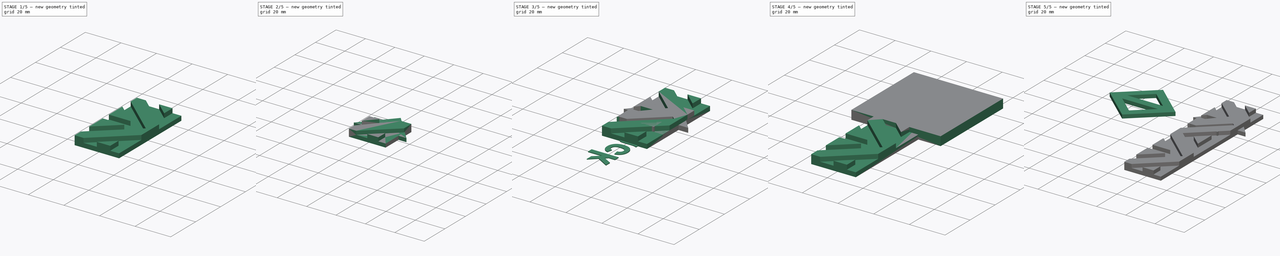
[diagram: build sequence overview — one tinted view per stage of 5, left to right]
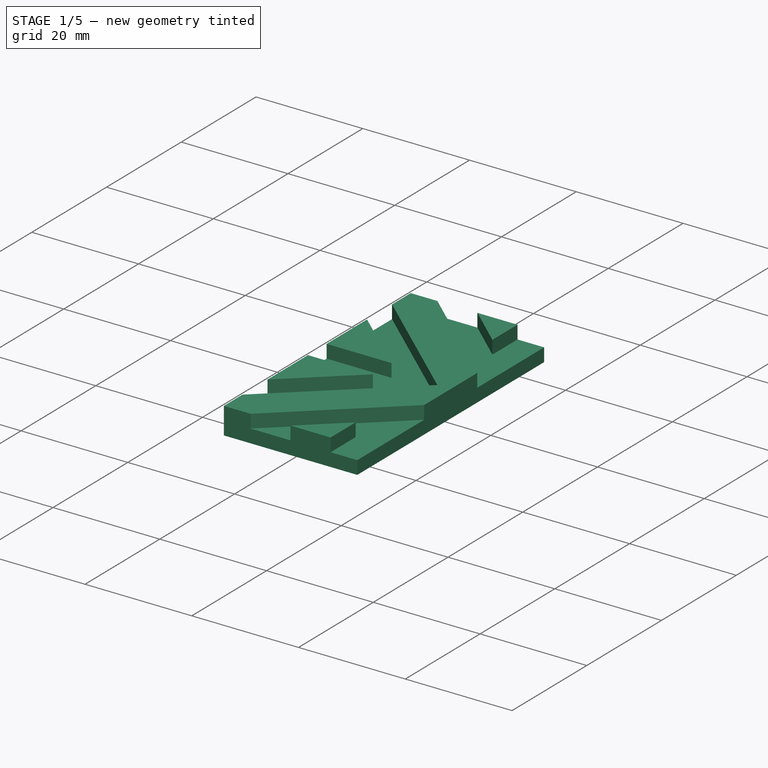
[diagram: stage 1 of 5 — iso view after this stage's code; geometry added in this stage tinted green]
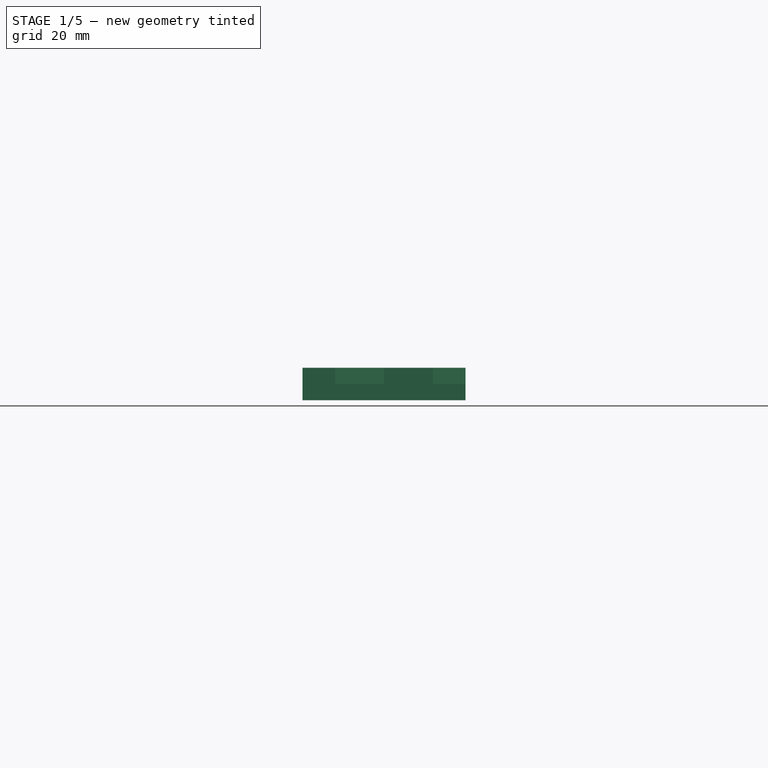
[diagram: stage 1 of 5 — front view after this stage's code; geometry added in this stage tinted green]
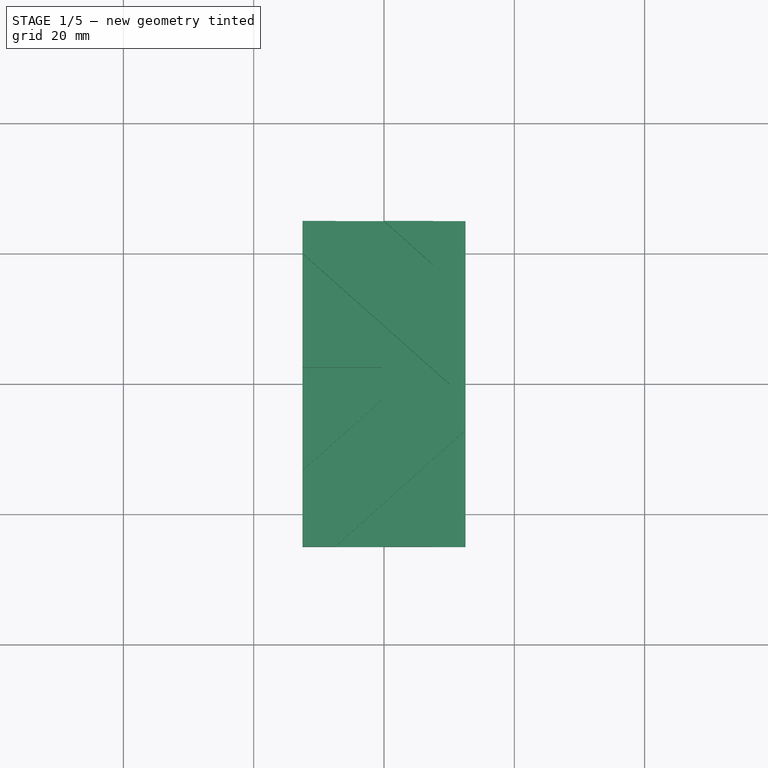
[diagram: stage 1 of 5 — top view after this stage's code; geometry added in this stage tinted green]
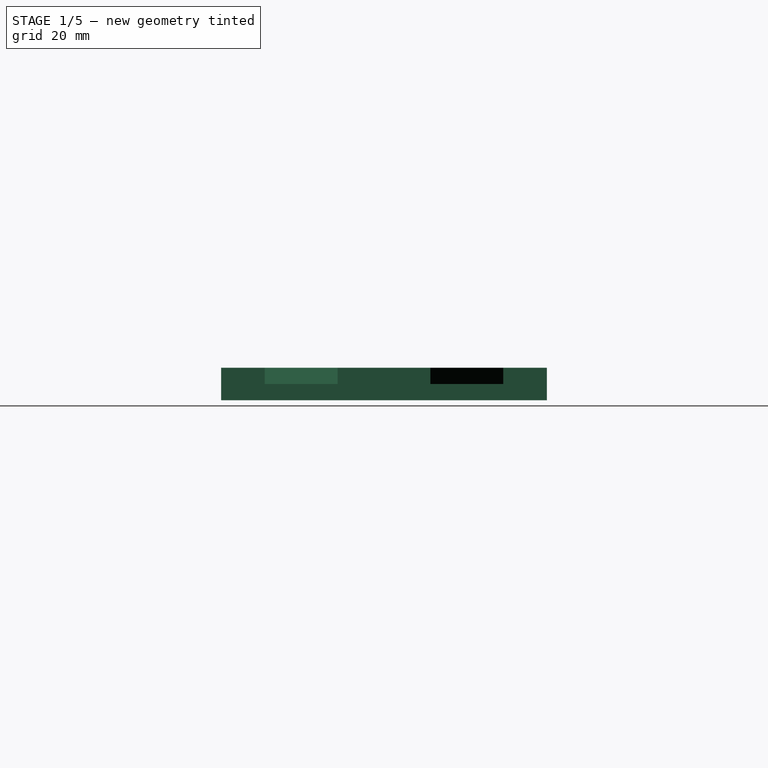
[diagram: stage 1 of 5 — right view after this stage's code; geometry added in this stage tinted green]
FCSTD DOCUMENT  (FreeCAD 1.0R39319 (Git))
Label: ChessBoard
License: All rights reserved
LicenseURL: https://en.wikipedia.org/wiki/All_rights_reserved
objects: Sketcher::SketchObject×9, PartDesign::Pad×6, PartDesign::Body×6, PartDesign::Pocket×4, Part::Extrusion×4, PartDesign::SubShapeBinder×3, PartDesign::Mirrored×3, Part::Part2DObjectPython×2, Part::Cut×2, App::VarSet×1, PartDesign::PolarPattern×1
note: 73 computed .brp shape members not serialized (recipe doc carries the construction recipe); baked Part::Feature solids carry a one-line shape summary decoded from their .brp

FEATURE [PartDesign::Body] Body001  label="Connector"
  AllowCompound = false
  Group = -> [Sketch002,Binder,Pad001,Mirrored]
  Origin = -> Origin001
  Tip = -> Mirrored
FEATURE [Sketcher::SketchObject] Sketch003
  ArcFitTolerance = 1e-06
  AttachmentSupport = -> [XY_Plane002]
  FullyConstrained = true
  MakeInternals = false
  MapMode = 5
  expr: Constraints[10] = VarSet.BorderSize
  expr: Constraints[9] = VarSet.BlockSize
  sketch-geometry (5):
    g0: LineSegment StartX=-12.5 StartY=25 StartZ=0 EndX=-12.5 EndY=-25 EndZ=0
    g1: LineSegment StartX=-12.5 StartY=-25 StartZ=0 EndX=12.5 EndY=-25 EndZ=0
    g2: LineSegment StartX=12.5 StartY=-25 StartZ=0 EndX=12.5 EndY=25 EndZ=0
    g3: LineSegment StartX=12.5 StartY=25 StartZ=0 EndX=-12.5 EndY=25 EndZ=0
    g4: GeomPoint [constr] X=0 Y=0 Z=0
  constraints (12):
    c: Coincident(g0,g1)
    c: Coincident(g1,g2)
    c: Coincident(g2,g3)
    c: Coincident(g3,g0)
    c: Vertical(g0)
    c: Vertical(g2)
    c: Horizontal(g1)
    c: Horizontal(g3)
    c: Symmetric(g2,g0,g4)
    c: DistanceY(g2,g2) = 50
    c: DistanceX(g1,g1) = 25
    c: Coincident(g4,g-1)
FEATURE [PartDesign::Pad] Pad002
  Direction = (0,0,1)
  Length = 5
  Length2 = 10
  Profile = -> Sketch003
  ReferenceAxis = -> Sketch003 [N_Axis]
  Refine = true
  Suppressed = false
  Type = 0
  expr: Length = VarSet.Thickness
FEATURE [Sketcher::SketchObject] Sketch004
  ArcFitTolerance = 1e-06
  AttachmentSupport = -> [Pad002]
  ExternalGeometry = -> [Pad002]
  FullyConstrained = true
  MakeInternals = false
  MapMode = 5
  Placement = pos=(0,0,5) rot=(0,0,1;0rad)
  expr: Constraints[41] = VarSet.ConnectorGap
  expr: Constraints[42] = VarSet.ConnectorGap
  expr: Constraints[45] = VarSet.ConnectorJoinThickness
  expr: Constraints[46] = VarSet.ConnectorJoinThickness
  expr: Constraints[47] = VarSet.ConnectorJoinThickness
  expr: Constraints[48] = VarSet.ConnectorGap / 2
  expr: Constraints[55] = VarSet.ConnectorGap
  expr: Constraints[56] = VarSet.ConnectorJoinThickness
  expr: Constraints[57] = VarSet.ConnectorJoinThickness
  expr: Constraints[59] = VarSet.ConnectorJoinThickness
  sketch-geometry (21):
    g0: LineSegment StartX=-12.5 StartY=20 StartZ=0 EndX=10 EndY=0 EndZ=0
    g1: LineSegment StartX=10 StartY=0 StartZ=0 EndX=-12.5 EndY=-20 EndZ=0
    g2: LineSegment StartX=-12.5 StartY=-20 StartZ=0 EndX=-12.5 EndY=-13.3102 EndZ=0
    g3: LineSegment StartX=-12.5 StartY=-13.3102 StartZ=0 EndX=-0.338497 EndY=-2.5 EndZ=0
    g4: LineSegment StartX=-0.338497 StartY=-2.5 StartZ=0 EndX=-12.5 EndY=-2.5 EndZ=0
    g5: LineSegment StartX=-12.5 StartY=-2.5 StartZ=0 EndX=-12.5 EndY=2.5 EndZ=0
    g6: LineSegment StartX=-12.5 StartY=2.5 StartZ=0 EndX=-0.338497 EndY=2.5 EndZ=0
    g7: LineSegment StartX=-0.338497 StartY=2.5 StartZ=0 EndX=-12.5 EndY=13.3102 EndZ=0
    g8: LineSegment StartX=-12.5 StartY=13.3102 StartZ=0 EndX=-12.5 EndY=20 EndZ=0
    g9: LineSegment StartX=-7.5 StartY=25 StartZ=0 EndX=12.5 EndY=7.11146 EndZ=0
    g10: LineSegment StartX=12.5 StartY=7.11146 StartZ=0 EndX=12.5 EndY=25 EndZ=0
    g11: LineSegment StartX=12.5 StartY=25 StartZ=0 EndX=7.5 EndY=25 EndZ=0
    g12: LineSegment StartX=7.5 StartY=25 StartZ=0 EndX=7.5 EndY=18.2918 EndZ=0
    g13: LineSegment StartX=7.5 StartY=18.2918 StartZ=0 EndX=-9e-16 EndY=25 EndZ=0
    g14: LineSegment StartX=-9e-16 StartY=25 StartZ=0 EndX=-7.5 EndY=25 EndZ=0
    g15: LineSegment StartX=-7.5 StartY=-25 StartZ=0 EndX=12.5 EndY=-7.11146 EndZ=0
    g16: LineSegment StartX=12.5 StartY=-7.11146 StartZ=0 EndX=12.5 EndY=-25 EndZ=0
    g17: LineSegment StartX=12.5 StartY=-25 StartZ=0 EndX=7.5 EndY=-25 EndZ=0
    g18: LineSegment StartX=7.5 StartY=-25 StartZ=0 EndX=7.5 EndY=-18.2918 EndZ=0
    g19: LineSegment StartX=7.5 StartY=-18.2918 StartZ=0 EndX=1.8e-15 EndY=-25 EndZ=0
    g20: LineSegment StartX=1.8e-15 StartY=-25 StartZ=0 EndX=-7.5 EndY=-25 EndZ=0
  constraints (60):
    c: PointOnObject(g0,g-3)
    c: PointOnObject(g0,g-1)
    c: Coincident(g0,g1)
    c: PointOnObject(g1,g-3)
    c: Coincident(g1,g2)
    c: PointOnObject(g2,g-3)
    c: Coincident(g2,g3)
    c: Coincident(g3,g4)
    c: PointOnObject(g4,g-3)
    c: Horizontal(g4)
    c: Coincident(g4,g5)
    c: PointOnObject(g5,g-3)
    c: Coincident(g5,g6)
    c: Horizontal(g6)
    c: Coincident(g6,g7)
    c: PointOnObject(g7,g-3)
    c: Coincident(g7,g8)
    c: Coincident(g8,g0)
    c: PointOnObject(g9,g-5)
    c: PointOnObject(g9,g-4)
    c: Coincident(g9,g10)
    c: Coincident(g10,g-5)
    c: Coincident(g10,g11)
    c: PointOnObject(g11,g-5)
    c: Coincident(g11,g12)
    c: Vertical(g12)
    c: Coincident(g12,g13)
    c: Coincident(g13,g14)
    c: Coincident(g14,g9)
    c: PointOnObject(g15,g-6)
    c: PointOnObject(g15,g-4)
    c: Coincident(g15,g16)
    c: Coincident(g16,g-6)
    c: Coincident(g16,g17)
    c: PointOnObject(g17,g-6)
    c: Coincident(g17,g18)
    c: Vertical(g18)
    c: Coincident(g18,g19)
    c: Symmetric(g-6,g-6,g19)
    c: Coincident(g19,g20)
    c: Coincident(g20,g15)
    c: DistanceY(g0,g-5) = 5
    c: DistanceY(g-6,g1) = 5
    c: Equal(g6,g4)
    c: Equal(g3,g7)
    c: DistanceY(g5,g5) = 5
    c: Distance(g6,g0) = 5
    c: Distance(g7,g0) = 5
    c: Distance(g0,g-4) = 2.5
    c: Equal(g8,g2)
    c: Equal(g9,g15)
    c: Equal(g13,g19)
    c: Equal(g18,g12)
    c: Equal(g11,g17)
    c: Equal(g10,g16)
    c: DistanceX(g-5,g9) = 5
    c: Distance(g12,g9) = 5
    c: Distance(g13,g9) = 5
    c: PointOnObject(g13,g-5)
    c: Distance(g11,g11) = 5
FEATURE [PartDesign::Pocket] Pocket001
  BaseFeature = -> Pad002
  Direction = (0,0,-1)
  Length = 2.5
  Length2 = 5
  Profile = -> Sketch004
  ReferenceAxis = -> Sketch004 [N_Axis]
  Refine = true
  Suppressed = false
  Type = 0
  expr: Length = VarSet.ConnectorThickness
FEATURE [PartDesign::Body] Body002  label="Border"
  AllowCompound = false
  Group = -> [Sketch003,Pad002,Sketch004,Pocket001]
  Origin = -> Origin002
  Tip = -> Pocket001
FEATURE [Part::Part2DObjectPython] ShapeString  # Draft 2D object (typed FeaturePython)
  AttachmentOffset = pos=(5,7.5,0) rot=(0,0,1;3.14159rad)
  AttachmentSupport = -> [Pocket001]
  FontFile = <path>
  Fuse = false
  Justification = 6
  JustificationReference = 0
  KeepLeftMargin = false
  MakeFace = true
  MapMode = 5
  ObliqueAngle = 0
  Placement = pos=(5,-7.5,0) rot=(0,-1,0;3.14159rad)
  ScaleToSize = true
  Size = 15
  String = 8
  Tracking = 0
  expr: .AttachmentOffset.Base.x = VarSet.FontSize / 3
  expr: .AttachmentOffset.Base.y = VarSet.FontSize / 2
  expr: Size = VarSet.FontSize
FEATURE [Part::Extrusion] Extrude
  Base = -> ShapeString
  Dir = (0,0,-1)
  DirMode = 2
  FaceMakerClass = Part::FaceMakerBullseye
  FaceMakerMode = 3
  LengthFwd = 0
  LengthRev = 0.4
  Solid = false
  Symmetric = false
  expr: LengthRev = VarSet.InkThickness
FEATURE [Part::Cut] Cut  label="BorderBlock"
  Base = -> Body002
  Refine = true
  Tool = -> Extrude
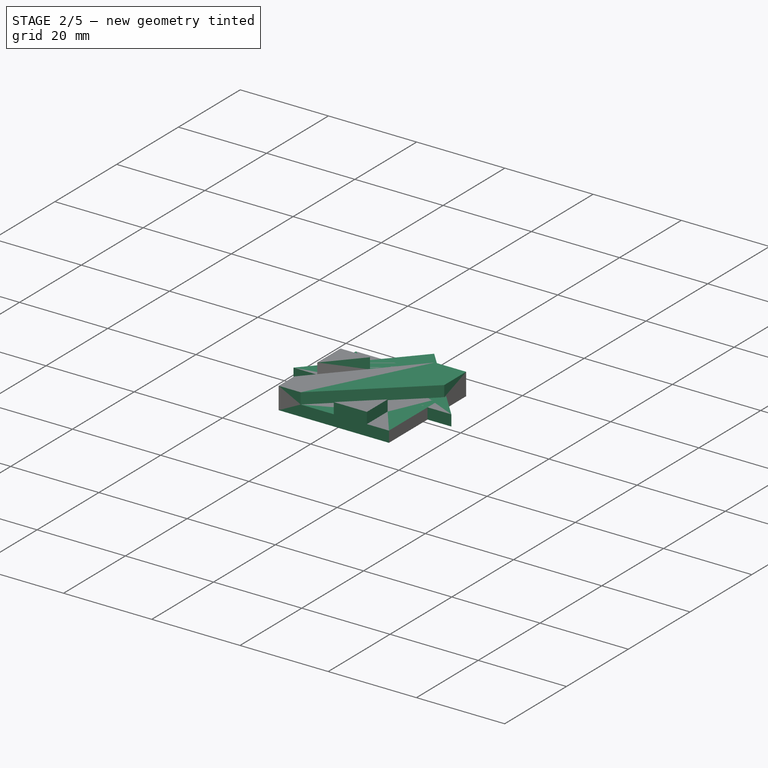
[diagram: stage 2 of 5 — iso view after this stage's code; geometry added in this stage tinted green]
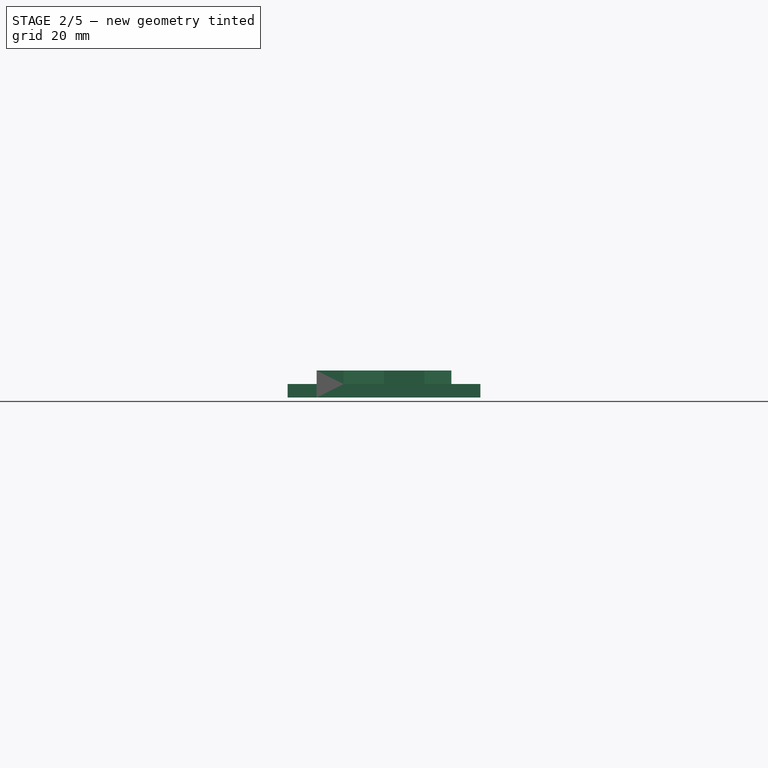
[diagram: stage 2 of 5 — front view after this stage's code; geometry added in this stage tinted green]
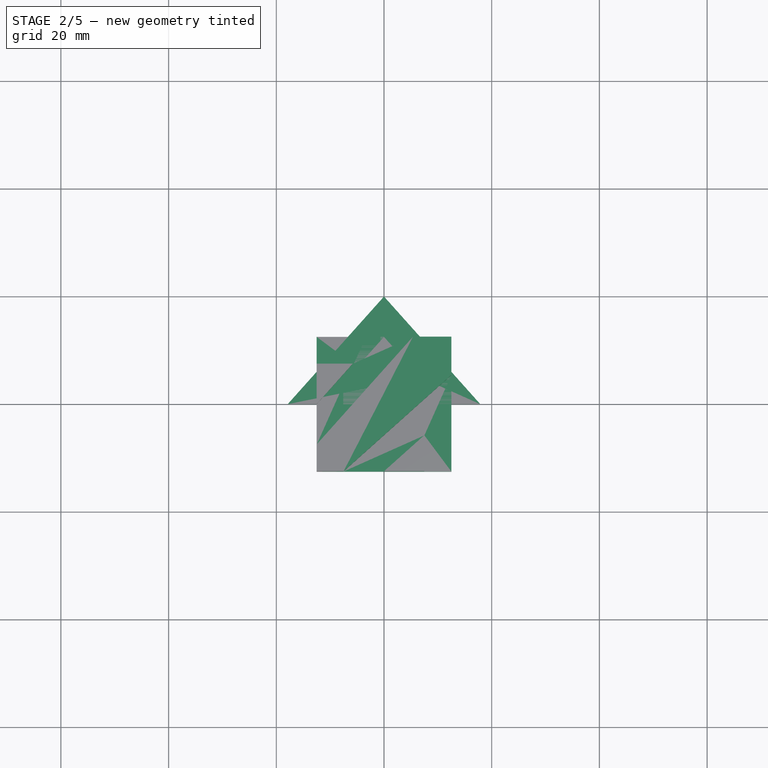
[diagram: stage 2 of 5 — top view after this stage's code; geometry added in this stage tinted green]
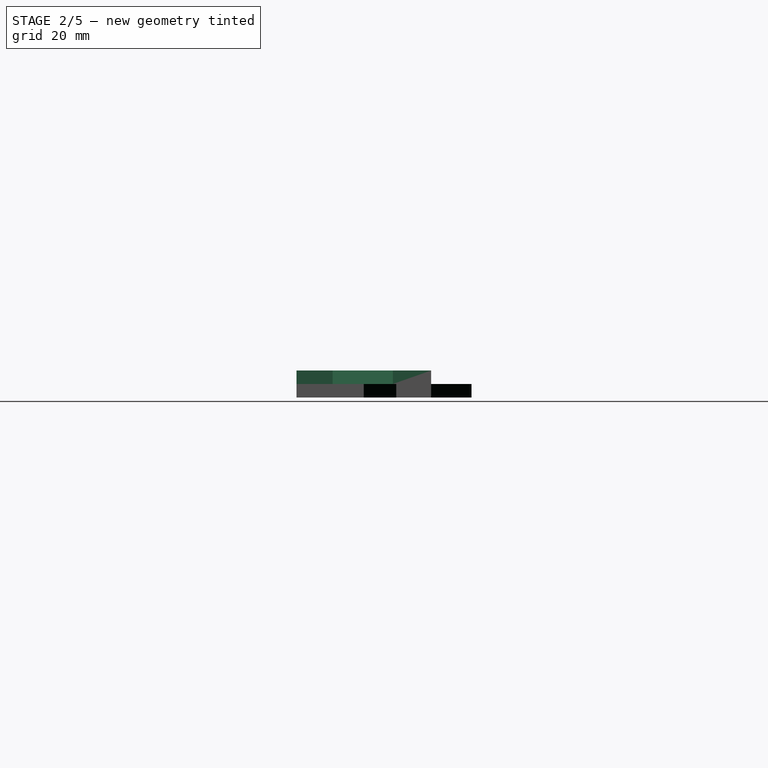
[diagram: stage 2 of 5 — right view after this stage's code; geometry added in this stage tinted green]
FEATURE [PartDesign::SubShapeBinder] Binder001
  BindCopyOnChange = 0
  BindMode = 0
  ClaimChildren = false
  Context = -> Body004 [Binder001.]
  Fuse = false
  MakeFace = true
  OffsetFill = false
  OffsetIntersection = false
  OffsetJoinType = 0
  OffsetOpenResult = false
  PartialLoad = false
  Placement = pos=(50,0,0) rot=(0,0,1;0rad)
  Refine = true
  Relative = true
  Support = -> [Body002[Sketch004.]]
  _Version = 2
  expr: .Placement.Base.x = VarSet.BlockSize
FEATURE [Sketcher::SketchObject] Sketch006
  ArcFitTolerance = 1e-06
  AttachmentSupport = -> [XY_Plane004]
  FullyConstrained = true
  MakeInternals = false
  MapMode = 5
  expr: Constraints[11] = VarSet.BorderSize
  sketch-geometry (5):
    g0: LineSegment StartX=-12.5 StartY=12.5 StartZ=0 EndX=-12.5 EndY=-12.5 EndZ=0
    g1: LineSegment StartX=-12.5 StartY=-12.5 StartZ=0 EndX=12.5 EndY=-12.5 EndZ=0
    g2: LineSegment StartX=12.5 StartY=-12.5 StartZ=0 EndX=12.5 EndY=12.5 EndZ=0
    g3: LineSegment StartX=12.5 StartY=12.5 StartZ=0 EndX=-12.5 EndY=12.5 EndZ=0
    g4: GeomPoint [constr] X=0 Y=0 Z=0
  constraints (12):
    c: Coincident(g0,g1)
    c: Coincident(g1,g2)
    c: Coincident(g2,g3)
    c: Coincident(g3,g0)
    c: Vertical(g0)
    c: Vertical(g2)
    c: Horizontal(g1)
    c: Horizontal(g3)
    c: Symmetric(g2,g0,g4)
    c: Coincident(g4,g-1)
    c: Equal(g2,g1)
    c: DistanceY(g0,g0) = 25
FEATURE [PartDesign::Pad] Pad004
  Direction = (0,0,1)
  Length = 5
  Length2 = 10
  Profile = -> Sketch006
  ReferenceAxis = -> Sketch006 [N_Axis]
  Refine = true
  Suppressed = false
  Type = 0
  expr: Length = VarSet.Thickness
FEATURE [Sketcher::SketchObject] Sketch007
  ArcFitTolerance = 1e-06
  AttachmentSupport = -> [Pad004]
  ExternalGeometry = -> [Pad004,Binder001]
  FullyConstrained = true
  MakeInternals = false
  MapMode = 5
  Placement = pos=(0,0,5) rot=(0,0,1;0rad)
  sketch-geometry (12):
    g0: LineSegment StartX=12.5 StartY=5.38854 StartZ=0 EndX=-7.5 EndY=-12.5 EndZ=0
    g1: LineSegment StartX=-7.5 StartY=-12.5 StartZ=0 EndX=9e-16 EndY=-12.5 EndZ=0
    g2: LineSegment StartX=9e-16 StartY=-12.5 StartZ=0 EndX=7.5 EndY=-5.7918 EndZ=0
    g3: LineSegment StartX=7.5 StartY=-5.7918 StartZ=0 EndX=7.5 EndY=-12.5 EndZ=0
    g4: LineSegment StartX=7.5 StartY=-12.5 StartZ=0 EndX=12.5 EndY=-12.5 EndZ=0
    g5: LineSegment StartX=12.5 StartY=-12.5 StartZ=0 EndX=12.5 EndY=5.38854 EndZ=0
    g6: LineSegment StartX=-12.5 StartY=-7.5 StartZ=0 EndX=5.38854 EndY=12.5 EndZ=0
    g7: LineSegment StartX=5.38854 StartY=12.5 StartZ=0 EndX=-12.5 EndY=12.5 EndZ=0
    g8: LineSegment StartX=-12.5 StartY=12.5 StartZ=0 EndX=-12.5 EndY=7.5 EndZ=0
    g9: LineSegment StartX=-12.5 StartY=7.5 StartZ=0 EndX=-5.7918 EndY=7.5 EndZ=0
    g10: LineSegment StartX=-5.7918 StartY=7.5 StartZ=0 EndX=-12.5 EndY=-1.6618e-12 EndZ=0
    g11: LineSegment StartX=-12.5 StartY=-1.6622e-12 StartZ=0 EndX=-12.5 EndY=-7.5 EndZ=0
  constraints (33):
    c: PointOnObject(g0,g-3)
    c: PointOnObject(g0,g-4)
    c: Coincident(g0,g1)
    c: Symmetric(g-4,g-4,g1)
    c: Coincident(g1,g2)
    c: Coincident(g2,g3)
    c: PointOnObject(g3,g-4)
    c: Vertical(g3)
    c: Coincident(g3,g4)
    c: Coincident(g4,g-4)
    c: Coincident(g4,g5)
    c: Coincident(g0,g5)
    c: Equal(g0,g-8)
    c: Equal(g2,g-10)
    c: Equal(g1,g-9)
    c: Equal(g4,g-12)
    c: PointOnObject(g6,g-5)
    c: PointOnObject(g6,g-6)
    c: Coincident(g6,g7)
    c: Coincident(g7,g-6)
    c: Coincident(g7,g8)
    c: PointOnObject(g8,g-5)
    c: Coincident(g8,g9)
    c: Horizontal(g9)
    c: Coincident(g9,g10)
    c: PointOnObject(g10,g-5)
    c: Coincident(g10,g11)
    c: Coincident(g11,g6)
    c: Equal(g0,g6)
    c: Equal(g8,g4)
    c: Equal(g11,g1)
    c: Equal(g10,g2)
    c: Equal(g9,g3)
FEATURE [PartDesign::Pocket] Pocket003
  BaseFeature = -> Pad004
  Direction = (0,0,-1)
  Length = 2.5
  Length2 = 5
  Profile = -> Sketch007
  ReferenceAxis = -> Sketch007 [N_Axis]
  Refine = true
  Suppressed = false
  Type = 0
  expr: Length = VarSet.ConnectorThickness
FEATURE [PartDesign::Body] Body004  label="Corner"
  AllowCompound = false
  Group = -> [Binder001,Sketch006,Pad004,Sketch007,Pocket003]
  Origin = -> Origin004
  Tip = -> Pocket003
FEATURE [PartDesign::SubShapeBinder] Binder002
  BindCopyOnChange = 0
  BindMode = 0
  ClaimChildren = false
  Context = -> Body005 [Binder002.]
  Fuse = false
  MakeFace = true
  OffsetFill = false
  OffsetIntersection = false
  OffsetJoinType = 0
  OffsetOpenResult = false
  PartialLoad = false
  Placement = pos=(50,0,0) rot=(0,0,1;0rad)
  Refine = true
  Relative = true
  Support = -> [Cut]
  _Version = 2
  expr: .Placement.Base.x = VarSet.BlockSize
FEATURE [Sketcher::SketchObject] Sketch008
  ArcFitTolerance = 1e-06
  AttachmentSupport = -> [XY_Plane005]
  ExternalGeometry = -> [Binder002]
  FullyConstrained = true
  MakeInternals = false
  MapMode = 5
  sketch-geometry (6):
    g0: LineSegment StartX=0 StartY=0 StartZ=0 EndX=-17.8885 EndY=0 EndZ=0
    g1: LineSegment StartX=-17.8885 StartY=0 StartZ=0 EndX=0 EndY=20 EndZ=0
    g2: LineSegment StartX=0 StartY=20 StartZ=0 EndX=0 EndY=12.5 EndZ=0
    g3: LineSegment StartX=0 StartY=12.5 StartZ=0 EndX=-6.7082 EndY=5 EndZ=0
    g4: LineSegment StartX=-6.7082 StartY=5 StartZ=0 EndX=0 EndY=5 EndZ=0
    g5: LineSegment StartX=0 StartY=5 StartZ=0 EndX=0 EndY=0 EndZ=0
  constraints (17):
    c: Coincident(g-1,g0)
    c: PointOnObject(g0,g-1)
    c: Coincident(g0,g1)
    c: PointOnObject(g1,g-2)
    c: Coincident(g1,g2)
    c: PointOnObject(g2,g-2)
    c: Coincident(g2,g3)
    c: Coincident(g3,g4)
    c: PointOnObject(g4,g-2)
    c: Horizontal(g4)
    c: Coincident(g4,g5)
    c: Coincident(g5,g0)
    c: Equal(g0,g-3)
    c: Equal(g1,g-4)
    c: Equal(g2,g-5)
    c: Equal(g5,g-8)
    c: Equal(g3,g-6)
FEATURE [PartDesign::Pad] Pad005
  Direction = (0,0,1)
  Length = 2.5
  Length2 = 10
  Profile = -> Sketch008
  ReferenceAxis = -> Sketch008 [N_Axis]
  Refine = true
  Suppressed = false
  Type = 0
  expr: Length = VarSet.ConnectorThickness
FEATURE [PartDesign::Mirrored] Mirrored002
  BaseFeature = -> Pad005
  MirrorPlane = -> YZ_Plane005
  Refine = true
  Suppressed = false
  TransformMode = 1
FEATURE [PartDesign::Body] Body005  label="BorderConnector"
  AllowCompound = false
  Group = -> [Binder002,Sketch008,Pad005,Mirrored002]
  Origin = -> Origin005
  Tip = -> Mirrored002
note: 2 file-system paths scrubbed to <path> (originals preserved in the JSON sidecar)
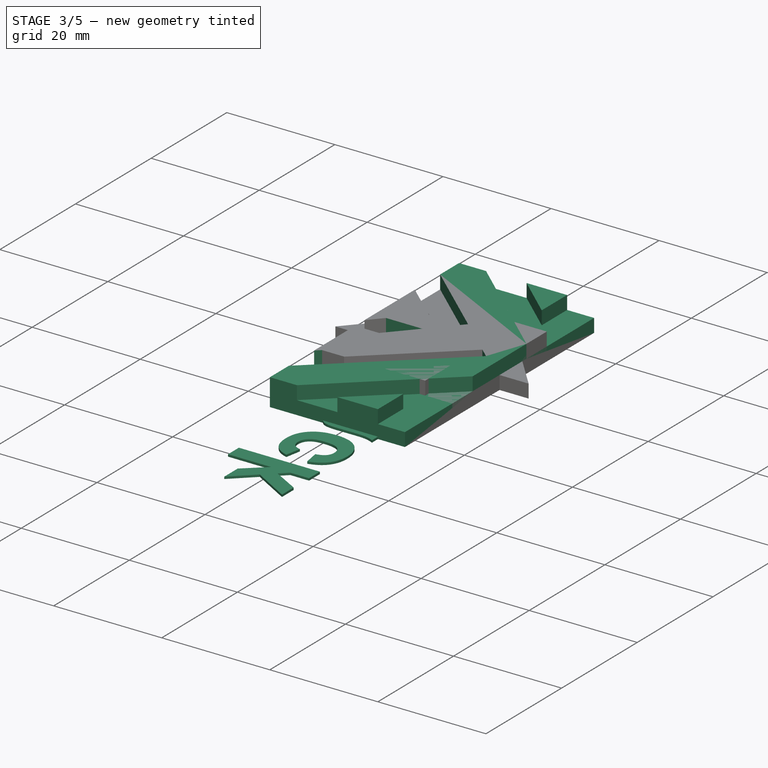
[diagram: stage 3 of 5 — iso view after this stage's code; geometry added in this stage tinted green]
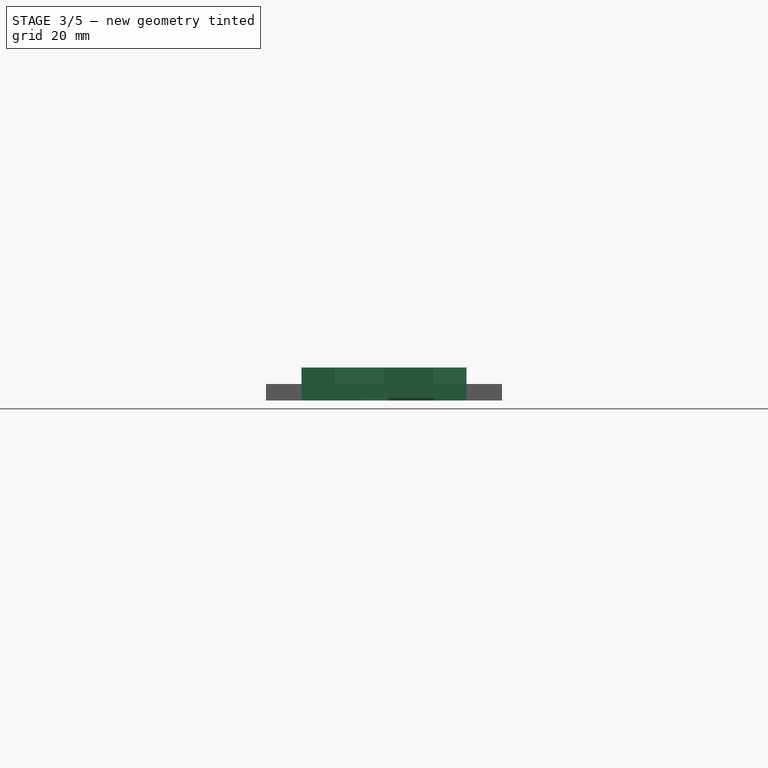
[diagram: stage 3 of 5 — front view after this stage's code; geometry added in this stage tinted green]
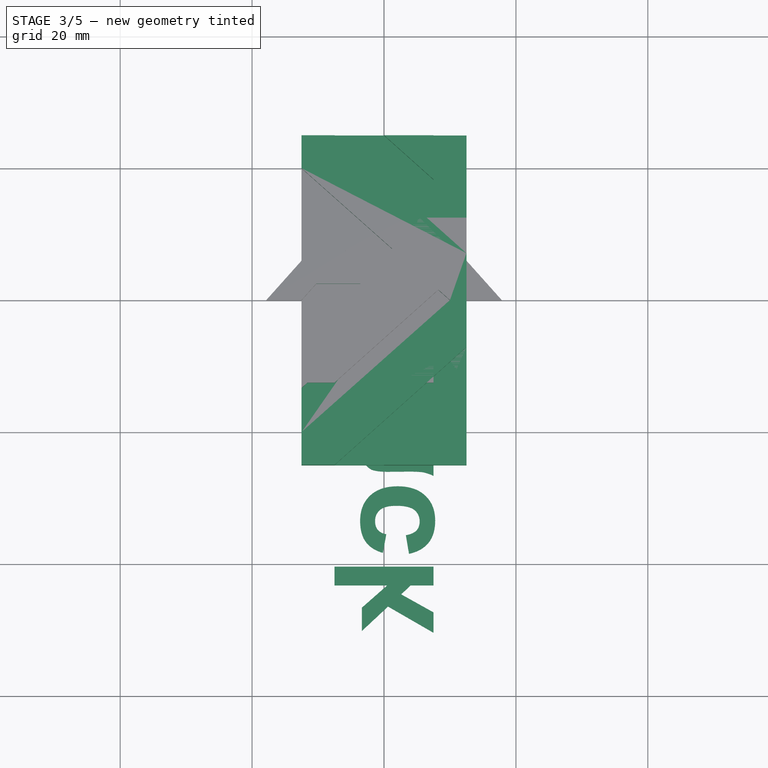
[diagram: stage 3 of 5 — top view after this stage's code; geometry added in this stage tinted green]
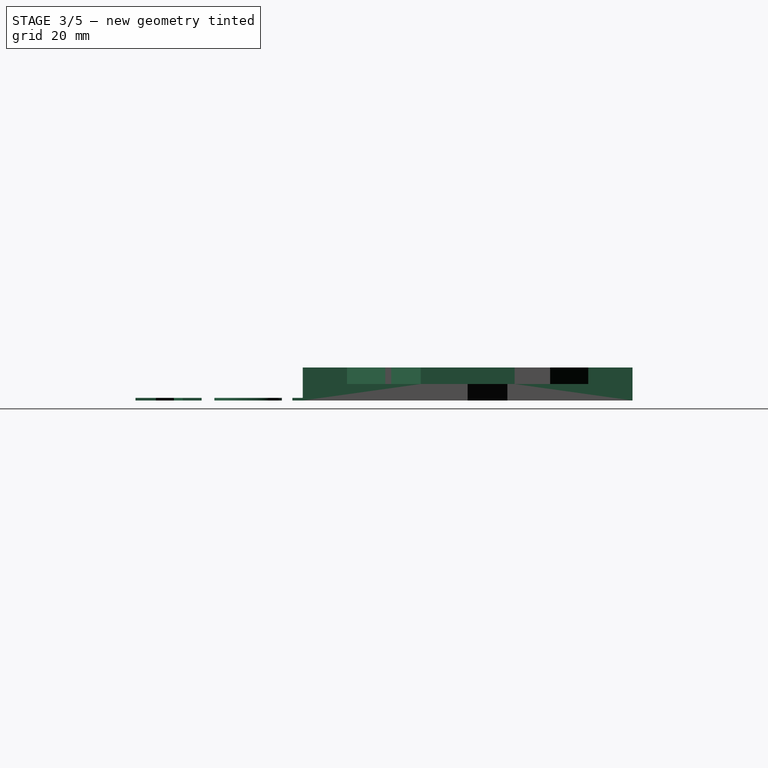
[diagram: stage 3 of 5 — right view after this stage's code; geometry added in this stage tinted green]
FEATURE [PartDesign::Pad] Pad003
  Direction = (0,0,1)
  Length = 5
  Length2 = 10
  Profile = -> Sketch003
  ReferenceAxis = -> Sketch003 [N_Axis]
  Refine = true
  Suppressed = false
  Type = 0
  expr: Length = VarSet.Thickness
FEATURE [Sketcher::SketchObject] Sketch005
  ArcFitTolerance = 1e-06
  AttachmentSupport = -> [Pad003]
  ExternalGeometry = -> [Pad003]
  FullyConstrained = true
  MakeInternals = false
  MapMode = 5
  Placement = pos=(0,0,5) rot=(0,0,1;0rad)
  expr: Constraints[41] = VarSet.ConnectorGap
  expr: Constraints[42] = VarSet.ConnectorGap
  expr: Constraints[45] = VarSet.ConnectorJoinThickness
  expr: Constraints[46] = VarSet.ConnectorJoinThickness
  expr: Constraints[47] = VarSet.ConnectorJoinThickness
  expr: Constraints[48] = VarSet.ConnectorGap / 2
  expr: Constraints[55] = VarSet.ConnectorGap
  expr: Constraints[56] = VarSet.ConnectorJoinThickness
  expr: Constraints[57] = VarSet.ConnectorJoinThickness
  expr: Constraints[59] = VarSet.ConnectorJoinThickness
  sketch-geometry (21):
    g0: LineSegment StartX=-12.5 StartY=20 StartZ=0 EndX=10 EndY=0 EndZ=0
    g1: LineSegment StartX=10 StartY=0 StartZ=0 EndX=-12.5 EndY=-20 EndZ=0
    g2: LineSegment StartX=-12.5 StartY=-20 StartZ=0 EndX=-12.5 EndY=-13.3102 EndZ=0
    g3: LineSegment StartX=-12.5 StartY=-13.3102 StartZ=0 EndX=-0.338497 EndY=-2.5 EndZ=0
    g4: LineSegment StartX=-0.338497 StartY=-2.5 StartZ=0 EndX=-12.5 EndY=-2.5 EndZ=0
    g5: LineSegment StartX=-12.5 StartY=-2.5 StartZ=0 EndX=-12.5 EndY=2.5 EndZ=0
    g6: LineSegment StartX=-12.5 StartY=2.5 StartZ=0 EndX=-0.338497 EndY=2.5 EndZ=0
    g7: LineSegment StartX=-0.338497 StartY=2.5 StartZ=0 EndX=-12.5 EndY=13.3102 EndZ=0
    g8: LineSegment StartX=-12.5 StartY=13.3102 StartZ=0 EndX=-12.5 EndY=20 EndZ=0
    g9: LineSegment StartX=-7.5 StartY=25 StartZ=0 EndX=12.5 EndY=7.11146 EndZ=0
    g10: LineSegment StartX=12.5 StartY=7.11146 StartZ=0 EndX=12.5 EndY=25 EndZ=0
    g11: LineSegment StartX=12.5 StartY=25 StartZ=0 EndX=7.5 EndY=25 EndZ=0
    g12: LineSegment StartX=7.5 StartY=25 StartZ=0 EndX=7.5 EndY=18.2918 EndZ=0
    g13: LineSegment StartX=7.5 StartY=18.2918 StartZ=0 EndX=-9e-16 EndY=25 EndZ=0
    g14: LineSegment StartX=-9e-16 StartY=25 StartZ=0 EndX=-7.5 EndY=25 EndZ=0
    g15: LineSegment StartX=-7.5 StartY=-25 StartZ=0 EndX=12.5 EndY=-7.11146 EndZ=0
    g16: LineSegment StartX=12.5 StartY=-7.11146 StartZ=0 EndX=12.5 EndY=-25 EndZ=0
    g17: LineSegment StartX=12.5 StartY=-25 StartZ=0 EndX=7.5 EndY=-25 EndZ=0
    g18: LineSegment StartX=7.5 StartY=-25 StartZ=0 EndX=7.5 EndY=-18.2918 EndZ=0
    g19: LineSegment StartX=7.5 StartY=-18.2918 StartZ=0 EndX=1.8e-15 EndY=-25 EndZ=0
    g20: LineSegment StartX=1.8e-15 StartY=-25 StartZ=0 EndX=-7.5 EndY=-25 EndZ=0
  constraints (60):
    c: PointOnObject(g0,g-3)
    c: PointOnObject(g0,g-1)
    c: Coincident(g0,g1)
    c: PointOnObject(g1,g-3)
    c: Coincident(g1,g2)
    c: PointOnObject(g2,g-3)
    c: Coincident(g2,g3)
    c: Coincident(g3,g4)
    c: PointOnObject(g4,g-3)
    c: Horizontal(g4)
    c: Coincident(g4,g5)
    c: PointOnObject(g5,g-3)
    c: Coincident(g5,g6)
    c: Horizontal(g6)
    c: Coincident(g6,g7)
    c: PointOnObject(g7,g-3)
    c: Coincident(g7,g8)
    c: Coincident(g8,g0)
    c: PointOnObject(g9,g-5)
    c: PointOnObject(g9,g-4)
    c: Coincident(g9,g10)
    c: Coincident(g10,g-5)
    c: Coincident(g10,g11)
    c: PointOnObject(g11,g-5)
    c: Coincident(g11,g12)
    c: Vertical(g12)
    c: Coincident(g12,g13)
    c: Coincident(g13,g14)
    c: Coincident(g14,g9)
    c: PointOnObject(g15,g-6)
    c: PointOnObject(g15,g-4)
    c: Coincident(g15,g16)
    c: Coincident(g16,g-6)
    c: Coincident(g16,g17)
    c: PointOnObject(g17,g-6)
    c: Coincident(g17,g18)
    c: Vertical(g18)
    c: Coincident(g18,g19)
    c: Symmetric(g-6,g-6,g19)
    c: Coincident(g19,g20)
    c: Coincident(g20,g15)
    c: DistanceY(g0,g-5) = 5
    c: DistanceY(g-6,g1) = 5
    c: Equal(g6,g4)
    c: Equal(g3,g7)
    c: DistanceY(g5,g5) = 5
    c: Distance(g6,g0) = 5
    c: Distance(g7,g0) = 5
    c: Distance(g0,g-4) = 2.5
    c: Equal(g8,g2)
    c: Equal(g9,g15)
    c: Equal(g13,g19)
    c: Equal(g18,g12)
    c: Equal(g11,g17)
    c: Equal(g10,g16)
    c: DistanceX(g-5,g9) = 5
    c: Distance(g12,g9) = 5
    c: Distance(g13,g9) = 5
    c: PointOnObject(g13,g-5)
    c: Distance(g11,g11) = 5
FEATURE [PartDesign::Pocket] Pocket002
  BaseFeature = -> Pad003
  Direction = (0,0,-1)
  Length = 2.5
  Length2 = 5
  Profile = -> Sketch005
  ReferenceAxis = -> Sketch005 [N_Axis]
  Refine = true
  Suppressed = false
  Type = 0
  expr: Length = VarSet.ConnectorThickness
FEATURE [PartDesign::Body] Body003  label="BorderDouble"
  AllowCompound = false
  Group = -> [Pad003,Sketch005,Pocket002,Mirrored001]
  Origin = -> Origin003
  Tip = -> Mirrored001
FEATURE [Part::Part2DObjectPython] ShapeString001  # Draft 2D object (typed FeaturePython)
  AttachmentOffset = pos=(7.5,-3.75,0) rot=(0,0,1;1.5708rad)
  AttachmentSupport = -> [Mirrored001]
  FontFile = <path>
  Fuse = false
  Justification = 6
  JustificationReference = 0
  KeepLeftMargin = false
  MakeFace = true
  MapMode = 5
  ObliqueAngle = 0
  Placement = pos=(7.5,3.75,0) rot=(0.707107,-0.707107,0;3.14159rad)
  ScaleToSize = true
  Size = 15
  String = Black
  Tracking = 0
  expr: .AttachmentOffset.Base.x = VarSet.FontSize / 2
  expr: .AttachmentOffset.Base.y = -VarSet.FontSize / 4
  expr: Size = VarSet.FontSize
FEATURE [Part::Extrusion] Extrude002  label="BorderDoubleLetterHole"
  Base = -> ShapeString001
  Dir = (0,0,-1)
  DirMode = 2
  FaceMakerClass = Part::FaceMakerBullseye
  FaceMakerMode = 3
  LengthFwd = 0
  LengthRev = 0.4
  Solid = false
  Symmetric = false
  expr: LengthRev = VarSet.InkThickness
FEATURE [Part::Extrusion] Extrude003  label="BorderDoubleLetter"
  Base = -> ShapeString001
  Dir = (0,0,-1)
  DirMode = 2
  FaceMakerClass = Part::FaceMakerBullseye
  FaceMakerMode = 3
  LengthFwd = 0
  LengthRev = 0.4
  Solid = false
  Symmetric = false
  expr: LengthRev = VarSet.InkThickness
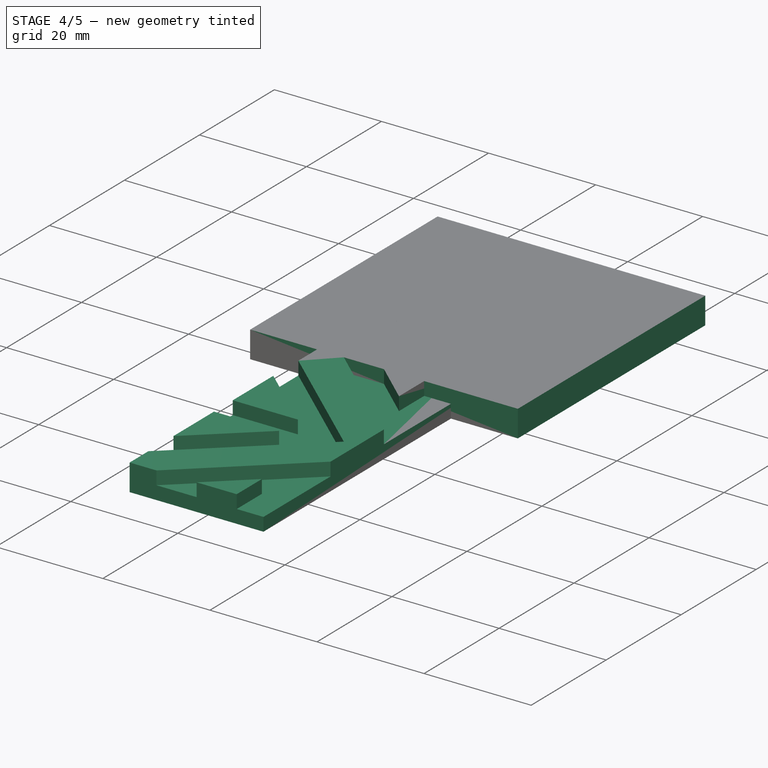
[diagram: stage 4 of 5 — iso view after this stage's code; geometry added in this stage tinted green]
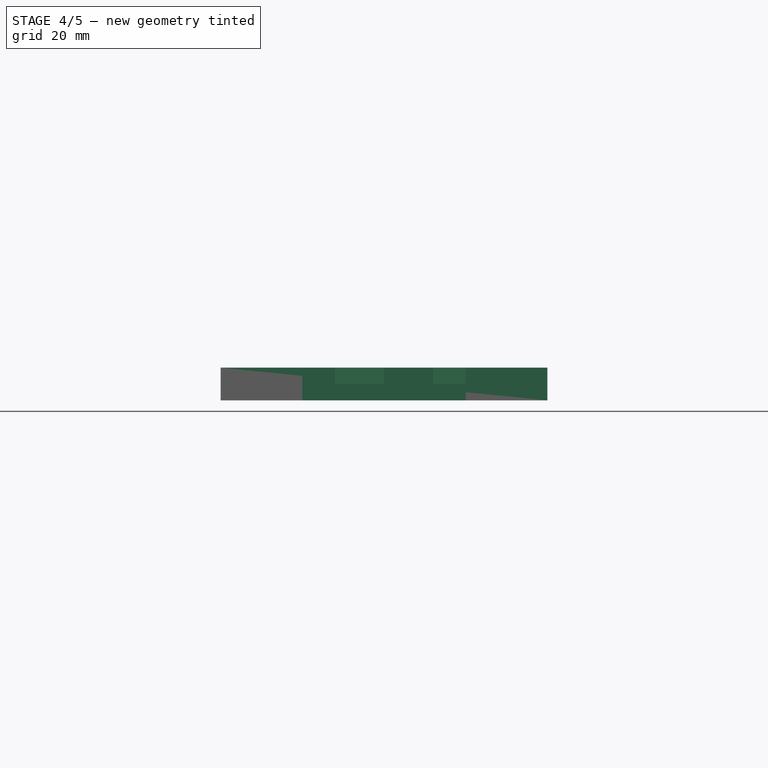
[diagram: stage 4 of 5 — front view after this stage's code; geometry added in this stage tinted green]
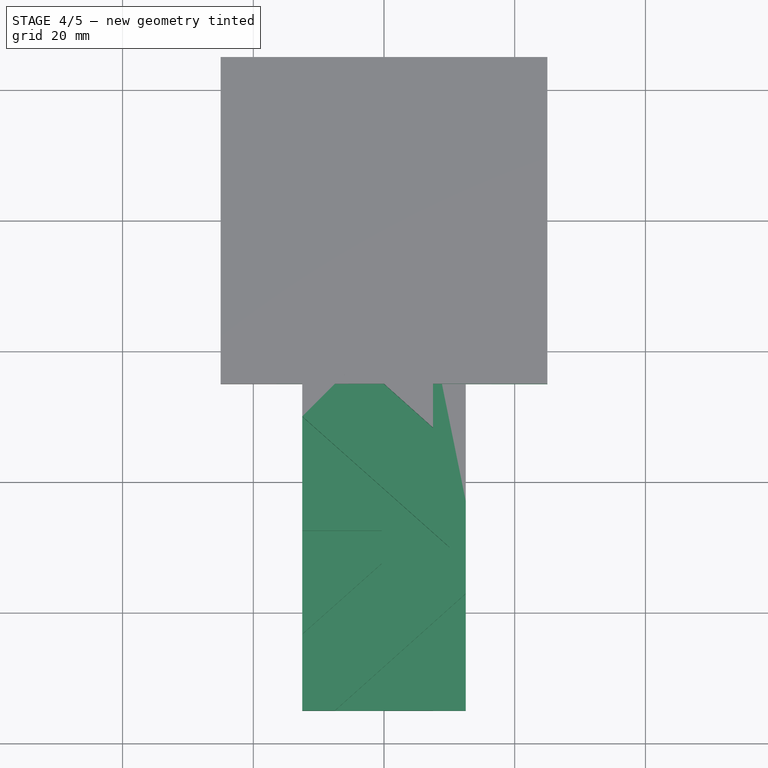
[diagram: stage 4 of 5 — top view after this stage's code; geometry added in this stage tinted green]
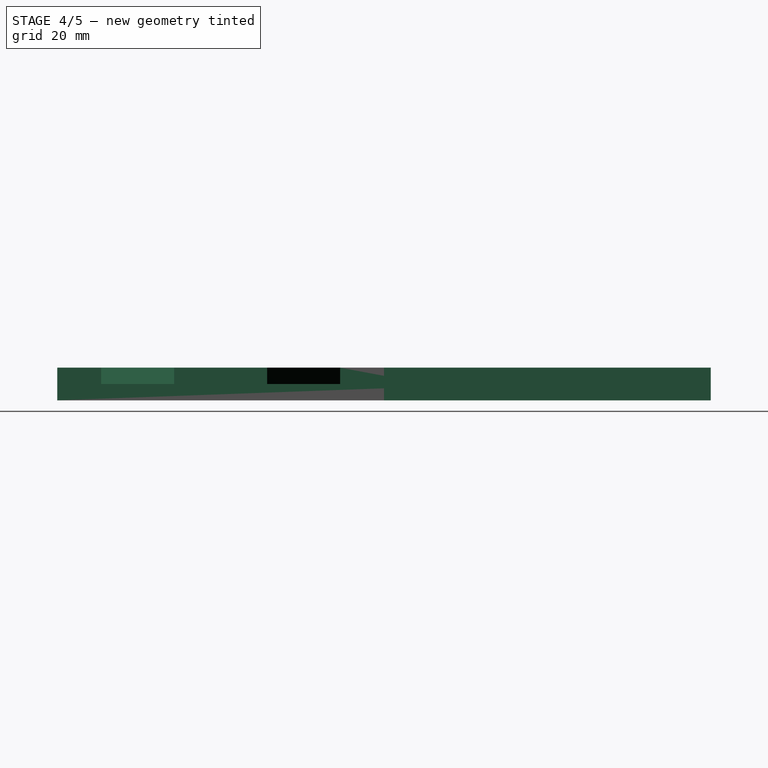
[diagram: stage 4 of 5 — right view after this stage's code; geometry added in this stage tinted green]
FEATURE [Sketcher::SketchObject] Sketch
  ArcFitTolerance = 1e-06
  AttachmentSupport = -> [XY_Plane]
  FullyConstrained = true
  MakeInternals = false
  MapMode = 5
  expr: Constraints[11] = VarSet.BlockSize
  sketch-geometry (5):
    g0: LineSegment StartX=-25 StartY=25 StartZ=0 EndX=-25 EndY=-25 EndZ=0
    g1: LineSegment StartX=-25 StartY=-25 StartZ=0 EndX=25 EndY=-25 EndZ=0
    g2: LineSegment StartX=25 StartY=-25 StartZ=0 EndX=25 EndY=25 EndZ=0
    g3: LineSegment StartX=25 StartY=25 StartZ=0 EndX=-25 EndY=25 EndZ=0
    g4: GeomPoint [constr] X=0 Y=0 Z=0
  constraints (12):
    c: Coincident(g0,g1)
    c: Coincident(g1,g2)
    c: Coincident(g2,g3)
    c: Coincident(g3,g0)
    c: Vertical(g0)
    c: Vertical(g2)
    c: Horizontal(g1)
    c: Horizontal(g3)
    c: Symmetric(g2,g0,g4)
    c: Coincident(g4,g-1)
    c: Equal(g3,g2)
    c: DistanceY(g0,g0) = 50
FEATURE [App::VarSet] VarSet
  BlockSize = 50
  BorderSize = 25
  ConnectorGap = 5
  ConnectorJoinThickness = 5
  ConnectorThickness = 2.5
  FontSize = 15
  InkThickness = 0.4
  Thickness = 5
  expr: BorderSize = BlockSize / 2
FEATURE [PartDesign::Pad] Pad
  Direction = (0,0,1)
  Length = 5
  Length2 = 10
  Profile = -> Sketch
  ReferenceAxis = -> Sketch [N_Axis]
  Refine = true
  Suppressed = false
  Type = 0
  expr: Length = VarSet.Thickness
FEATURE [Part::Extrusion] Extrude001  label="BorderLetter"
  Base = -> ShapeString
  Dir = (0,0,-1)
  DirMode = 2
  FaceMakerClass = Part::FaceMakerBullseye
  FaceMakerMode = 3
  LengthFwd = 0
  LengthRev = 0.4
  Solid = false
  Symmetric = false
FEATURE [PartDesign::Mirrored] Mirrored001
  BaseFeature = -> Pocket002
  MirrorPlane = -> Pocket002 [Face3]
  Refine = true
  Suppressed = false
  TransformMode = 1
FEATURE [Part::Cut] Cut001  label="BorderDoubleBlock"
  Base = -> Body003
  Refine = true
  Tool = -> Extrude002
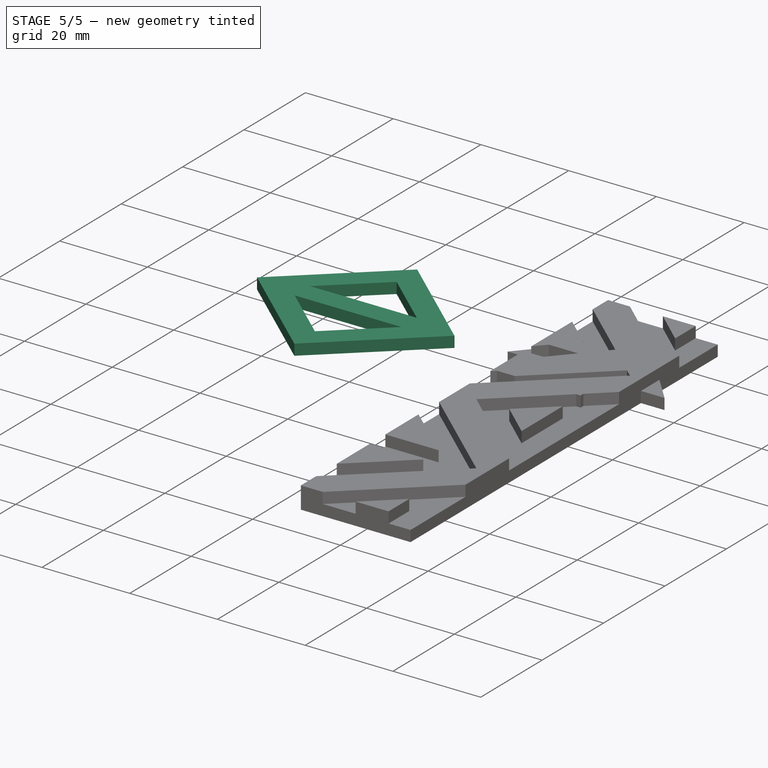
[diagram: stage 5 of 5 — iso view after this stage's code; geometry added in this stage tinted green]
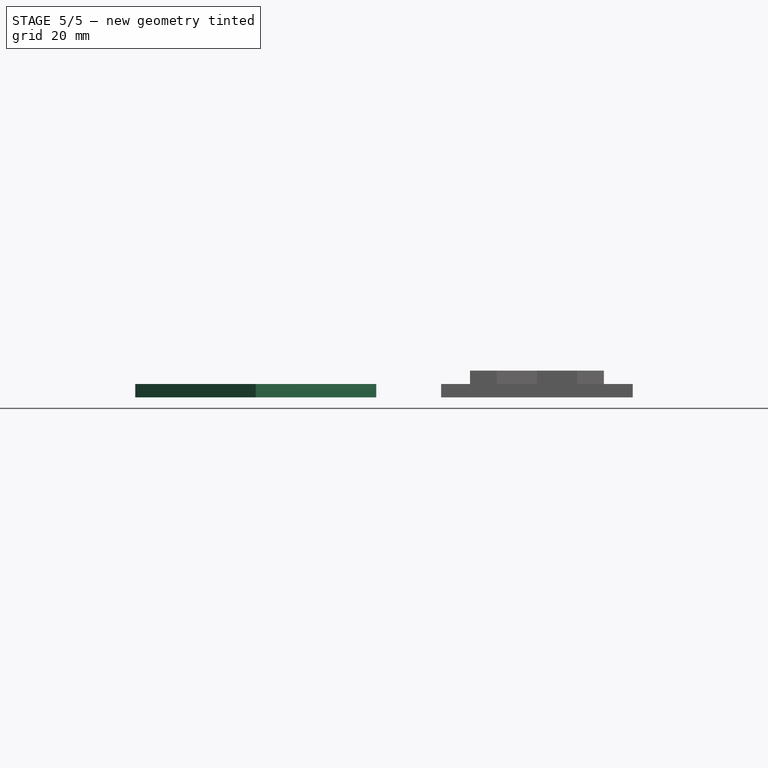
[diagram: stage 5 of 5 — front view after this stage's code; geometry added in this stage tinted green]
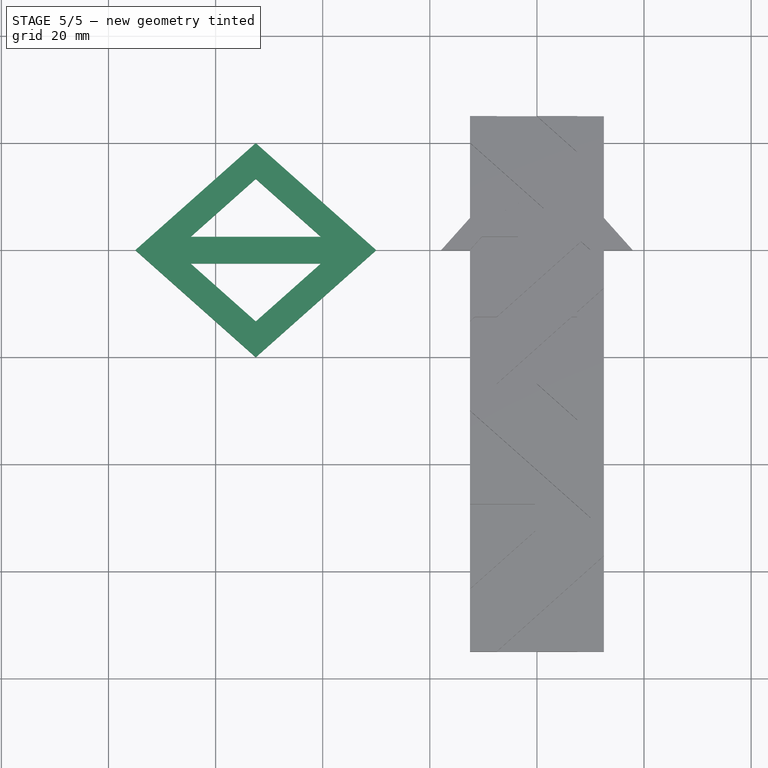
[diagram: stage 5 of 5 — top view after this stage's code; geometry added in this stage tinted green]
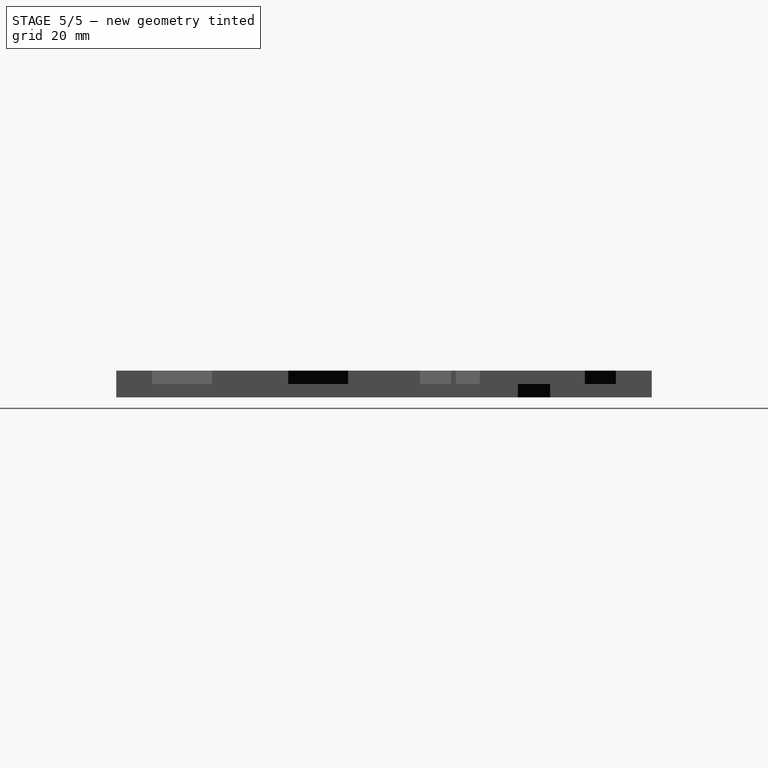
[diagram: stage 5 of 5 — right view after this stage's code; geometry added in this stage tinted green]
FEATURE [Sketcher::SketchObject] Sketch001
  ArcFitTolerance = 1e-06
  AttachmentSupport = -> [Pad]
  ExternalGeometry = -> [Pad]
  FullyConstrained = true
  MakeInternals = false
  MapMode = 5
  Placement = pos=(0,0,5) rot=(0,0,1;0rad)
  expr: Constraints[17] = VarSet.ConnectorGap
  expr: Constraints[21] = VarSet.ConnectorGap
  expr: Constraints[22] = VarSet.ConnectorJoinThickness
  expr: Constraints[23] = VarSet.ConnectorJoinThickness
  expr: Constraints[24] = VarSet.ConnectorJoinThickness
  expr: Constraints[26] = VarSet.ConnectorGap / 2
  sketch-geometry (9):
    g0: LineSegment StartX=-25 StartY=-20 StartZ=0 EndX=-2.5 EndY=0 EndZ=0
    g1: LineSegment StartX=-2.5 StartY=0 StartZ=0 EndX=-25 EndY=20 EndZ=0
    g2: LineSegment StartX=-25 StartY=20 StartZ=0 EndX=-25 EndY=13.3102 EndZ=0
    g3: LineSegment StartX=-25 StartY=13.3102 StartZ=0 EndX=-12.8385 EndY=2.5 EndZ=0
    g4: LineSegment StartX=-12.8385 StartY=2.5 StartZ=0 EndX=-25 EndY=2.5 EndZ=0
    g5: LineSegment StartX=-25 StartY=2.5 StartZ=0 EndX=-25 EndY=-2.5 EndZ=0
    g6: LineSegment StartX=-25 StartY=-2.5 StartZ=0 EndX=-12.8385 EndY=-2.5 EndZ=0
    g7: LineSegment StartX=-12.8385 StartY=-2.5 StartZ=0 EndX=-25 EndY=-13.3102 EndZ=0
    g8: LineSegment StartX=-25 StartY=-13.3102 StartZ=0 EndX=-25 EndY=-20 EndZ=0
  constraints (27):
    c: PointOnObject(g0,g-3)
    c: Coincident(g0,g1)
    c: PointOnObject(g1,g-3)
    c: Coincident(g1,g2)
    c: PointOnObject(g2,g-3)
    c: Coincident(g2,g3)
    c: Coincident(g3,g4)
    c: PointOnObject(g4,g-3)
    c: Horizontal(g4)
    c: Coincident(g4,g5)
    c: PointOnObject(g5,g-3)
    c: Coincident(g5,g6)
    c: Horizontal(g6)
    c: Coincident(g6,g7)
    c: PointOnObject(g7,g-3)
    c: Coincident(g7,g8)
    c: Coincident(g8,g0)
    c: DistanceY(g1,g-3) = 5
    c: Equal(g8,g2)
    c: Equal(g3,g7)
    c: Equal(g4,g6)
    c: DistanceY(g-3,g0) = 5
    c: Distance(g5,g5) = 5
    c: Distance(g2,g1) = 5
    c: Distance(g3,g1) = 5
    c: Equal(g0,g1)
    c: DistanceX(g0,g-1) = 2.5
FEATURE [PartDesign::Pocket] Pocket
  BaseFeature = -> Pad
  Direction = (0,0,-1)
  Length = 2.5
  Length2 = 5
  Profile = -> Sketch001
  ReferenceAxis = -> Sketch001 [N_Axis]
  Refine = true
  Suppressed = false
  Type = 0
  expr: Length = VarSet.ConnectorThickness
FEATURE [PartDesign::PolarPattern] PolarPattern
  Angle = 360
  Axis = -> Sketch001 [N_Axis]
  BaseFeature = -> Pocket
  Mode = 0
  Occurrences = 4
  Offset = 120
  Originals = -> [Pocket]
  Refine = true
  Suppressed = false
  TransformMode = 0
FEATURE [PartDesign::Body] Body  label="Block"
  AllowCompound = false
  Group = -> [Sketch,Pad,Sketch001,Pocket,PolarPattern]
  Origin = -> Origin
  Tip = -> PolarPattern
FEATURE [PartDesign::SubShapeBinder] Binder
  BindCopyOnChange = 0
  BindMode = 0
  ClaimChildren = false
  Context = -> Body001 [Binder.]
  Fuse = false
  MakeFace = true
  OffsetFill = false
  OffsetIntersection = false
  OffsetJoinType = 0
  OffsetOpenResult = false
  PartialLoad = false
  Refine = true
  Relative = true
  Support = -> [Body[PolarPattern.Edge57,PolarPattern.Edge55,PolarPattern.Edge54,PolarPattern.Face8,PolarPattern.Edge58,PolarPattern.Edge9,PolarPattern.Edge5,PolarPattern.Edge13]]
  _Version = 2
FEATURE [Sketcher::SketchObject] Sketch002
  ArcFitTolerance = 1e-06
  AttachmentSupport = -> [XY_Plane001]
  ExternalGeometry = -> [Binder]
  FullyConstrained = true
  MakeInternals = false
  MapMode = 5
  expr: Constraints[20] = VarSet.ConnectorGap
  expr: Constraints[25] = VarSet.ConnectorJoinThickness
  expr: Constraints[26] = VarSet.ConnectorJoinThickness
  sketch-geometry (9):
    g0: LineSegment StartX=-52.5 StartY=20 StartZ=0 EndX=-30 EndY=0 EndZ=0
    g1: LineSegment StartX=-30 StartY=0 StartZ=0 EndX=-52.5 EndY=-20 EndZ=0
    g2: LineSegment StartX=-52.5 StartY=-20 StartZ=0 EndX=-52.5 EndY=-13.3102 EndZ=0
    g3: LineSegment StartX=-52.5 StartY=-13.3102 StartZ=0 EndX=-40.3385 EndY=-2.5 EndZ=0
    g4: LineSegment StartX=-40.3385 StartY=-2.5 StartZ=0 EndX=-52.5 EndY=-2.5 EndZ=0
    g5: LineSegment StartX=-52.5 StartY=-2.5 StartZ=0 EndX=-52.5 EndY=2.5 EndZ=0
    g6: LineSegment StartX=-52.5 StartY=2.5 StartZ=0 EndX=-40.3385 EndY=2.5 EndZ=0
    g7: LineSegment StartX=-40.3385 StartY=2.5 StartZ=0 EndX=-52.5 EndY=13.3102 EndZ=0
    g8: LineSegment StartX=-52.5 StartY=13.3102 StartZ=0 EndX=-52.5 EndY=20 EndZ=0
  constraints (27):
    c: PointOnObject(g0,g-1)
    c: Coincident(g0,g1)
    c: Coincident(g1,g2)
    c: Vertical(g2)
    c: Coincident(g2,g3)
    c: Coincident(g3,g4)
    c: Horizontal(g4)
    c: Coincident(g4,g5)
    c: Vertical(g5)
    c: Coincident(g5,g6)
    c: Horizontal(g6)
    c: Coincident(g6,g7)
    c: Coincident(g7,g8)
    c: Vertical(g8)
    c: Coincident(g0,g8)
    c: Equal(g0,g-8)
    c: Equal(g8,g-9)
    c: Equal(g7,g-10)
    c: Equal(g6,g-11)
    c: Equal(g5,g-3)
    c: Distance(g0,g-3) = 5
    c: Equal(g0,g1)
    c: Equal(g2,g8)
    c: Equal(g3,g7)
    c: Equal(g6,g4)
    c: Distance(g3,g1) = 5
    c: Distance(g2,g1) = 5
FEATURE [PartDesign::Pad] Pad001
  Direction = (0,0,1)
  Length = 2.5
  Length2 = 10
  Profile = -> Sketch002
  ReferenceAxis = -> Sketch002 [N_Axis]
  Refine = true
  Suppressed = false
  Type = 0
  expr: Length = VarSet.ConnectorThickness
FEATURE [PartDesign::Mirrored] Mirrored
  BaseFeature = -> Pad001
  MirrorPlane = -> Pad001 [Face6]
  Originals = -> [Pad001]
  Refine = true
  Suppressed = false
  TransformMode = 0
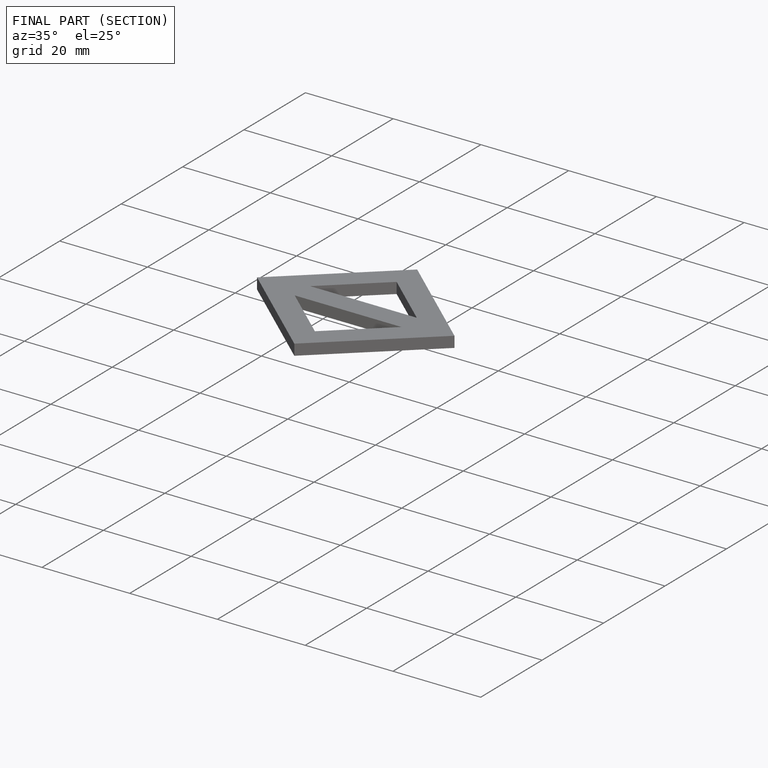
[diagram: finished part — half-section view (interior)]
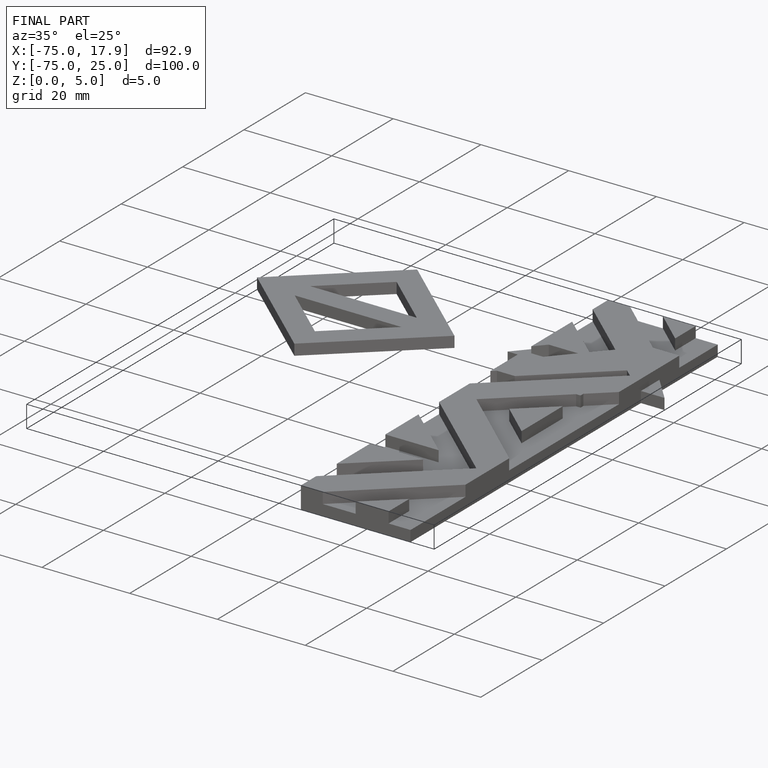
[diagram: finished part — iso view with bounding-box wireframe]
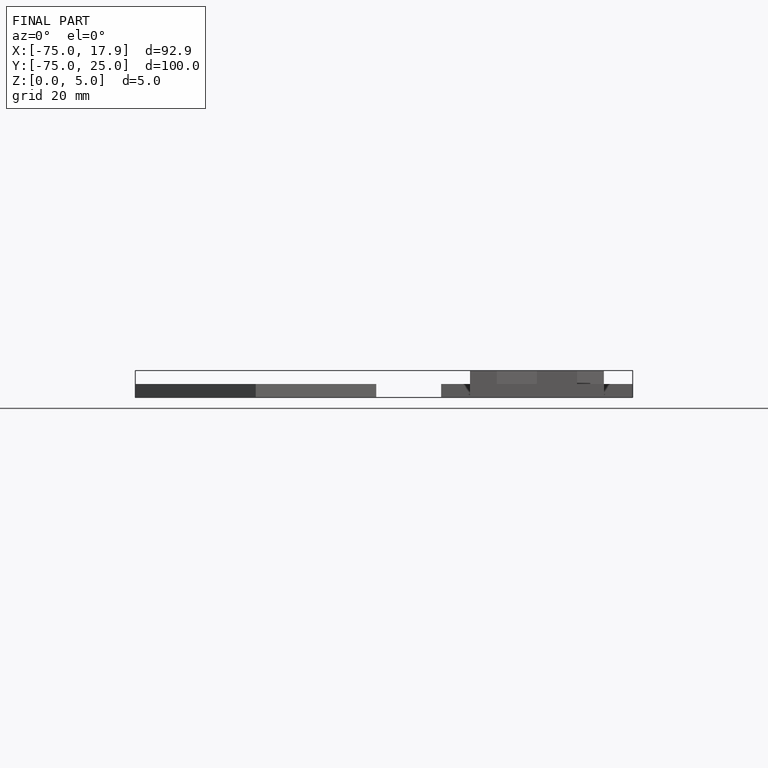
[diagram: finished part — front view with bounding-box wireframe]
